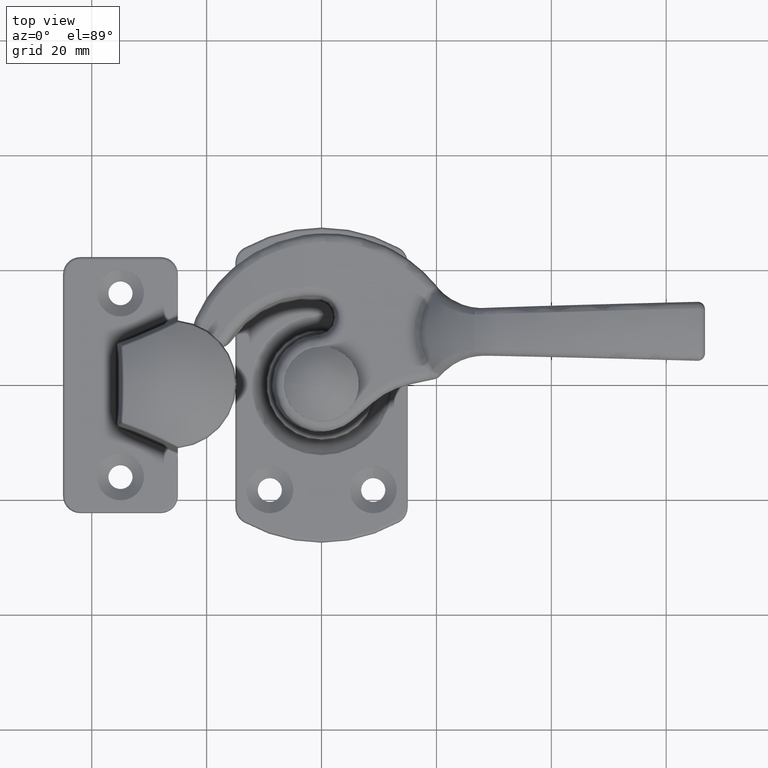
[diagram: clean part render]
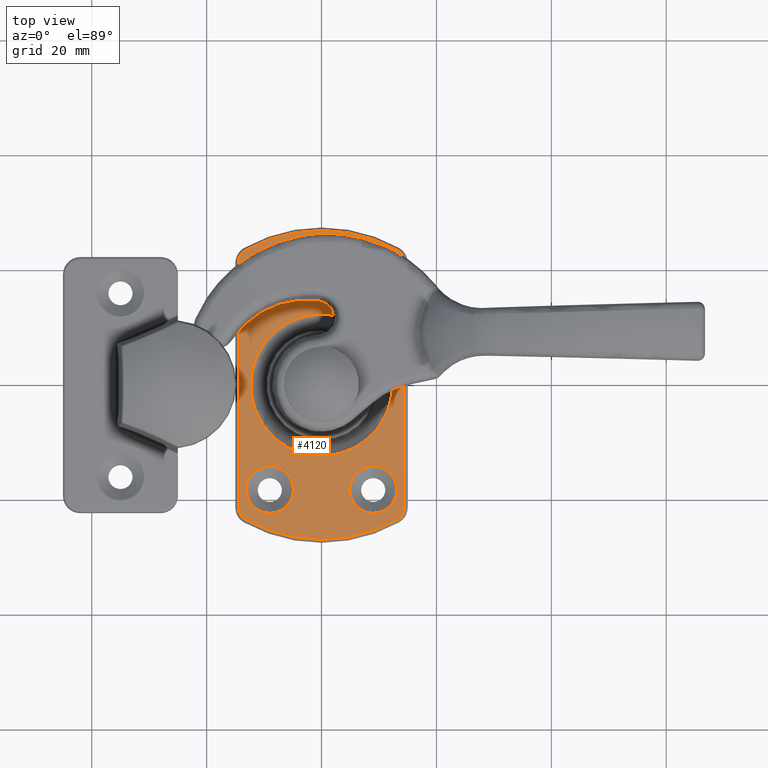
[diagram: same view with one face highlighted and labeled with its STEP entity id]
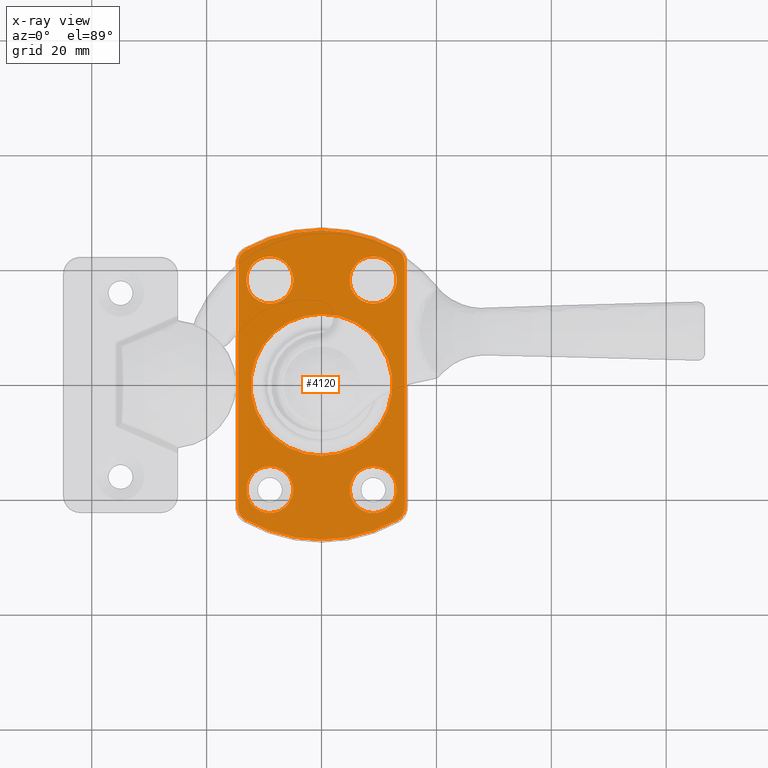
[diagram: x-ray of the same camera — body ghosted, the highlighted face saturated]
A machine part, top view. The second image highlights one B-rep face of the part: STEP entity #4120.
The next image is the same camera in x-ray: the body ghosted, the highlighted face saturated — about 0% of this face is hidden behind the body in this view.
In plain terms, the highlighted planar face has unit normal (-0, 0, -1).
Its self-contained STEP definition (entity closure, byte-faithful):
#453=PLANE('',#4456);
#541=LINE('',#6284,#713);
#542=LINE('',#6287,#714);
#713=VECTOR('',#5109,42.4904693769226);
#714=VECTOR('',#5112,42.4904697516707);
#946=FACE_BOUND('',#1304,.T.);
#947=FACE_BOUND('',#1305,.T.);
#948=FACE_BOUND('',#1306,.T.);
#949=FACE_BOUND('',#1307,.T.);
#950=FACE_BOUND('',#1308,.T.);
#1027=FACE_OUTER_BOUND('',#1303,.T.);
#1303=EDGE_LOOP('',(#3002,#3003,#3004,#3005,#3006,#3007,#3008,#3009,#3010));
#1304=EDGE_LOOP('',(#3011));
#1305=EDGE_LOOP('',(#3012));
#1306=EDGE_LOOP('',(#3013));
#1307=EDGE_LOOP('',(#3014));
#1308=EDGE_LOOP('',(#3015));
#1627=CIRCLE('',#4410,26.9000000321678);
#1630=CIRCLE('',#4414,2.50000048555164);
#1648=CIRCLE('',#4455,26.8999999952219);
#1649=CIRCLE('',#4457,2.50000860994918);
#1650=CIRCLE('',#4458,2.49999040405724);
#1651=CIRCLE('',#4459,2.49999870666066);
#1652=CIRCLE('',#4460,26.8999997211171);
#1653=CIRCLE('',#4461,4.1);
#1654=CIRCLE('',#4462,4.1);
#1655=CIRCLE('',#4463,4.1);
#1656=CIRCLE('',#4464,4.1);
#1657=CIRCLE('',#4465,12.3614974103484);
#1890=VERTEX_POINT('',#6169);
#1891=VERTEX_POINT('',#6171);
#1892=VERTEX_POINT('',#6175);
#1920=VERTEX_POINT('',#6276);
#1921=VERTEX_POINT('',#6280);
#1922=VERTEX_POINT('',#6281);
#1923=VERTEX_POINT('',#6283);
#1924=VERTEX_POINT('',#6286);
#1925=VERTEX_POINT('',#6288);
#1926=VERTEX_POINT('',#6291);
#1927=VERTEX_POINT('',#6293);
#1928=VERTEX_POINT('',#6295);
#1929=VERTEX_POINT('',#6297);
#1930=VERTEX_POINT('',#6299);
#2292=EDGE_CURVE('',#1890,#1891,#1627,.T.);
#2295=EDGE_CURVE('',#1892,#1890,#1630,.T.);
#2345=EDGE_CURVE('',#1891,#1920,#1648,.T.);
#2346=EDGE_CURVE('',#1921,#1922,#1649,.T.);
#2347=EDGE_CURVE('',#1923,#1921,#541,.T.);
#2348=EDGE_CURVE('',#1920,#1923,#1650,.T.);
#2349=EDGE_CURVE('',#1924,#1892,#542,.T.);
#2350=EDGE_CURVE('',#1925,#1924,#1651,.T.);
#2351=EDGE_CURVE('',#1922,#1925,#1652,.T.);
#2352=EDGE_CURVE('',#1926,#1926,#1653,.T.);
#2353=EDGE_CURVE('',#1927,#1927,#1654,.T.);
#2354=EDGE_CURVE('',#1928,#1928,#1655,.T.);
#2355=EDGE_CURVE('',#1929,#1929,#1656,.T.);
#2356=EDGE_CURVE('',#1930,#1930,#1657,.T.);
#3002=ORIENTED_EDGE('',*,*,#2346,.F.);
#3003=ORIENTED_EDGE('',*,*,#2347,.F.);
#3004=ORIENTED_EDGE('',*,*,#2348,.F.);
#3005=ORIENTED_EDGE('',*,*,#2345,.F.);
#3006=ORIENTED_EDGE('',*,*,#2292,.F.);
#3007=ORIENTED_EDGE('',*,*,#2295,.F.);
#3008=ORIENTED_EDGE('',*,*,#2349,.F.);
#3009=ORIENTED_EDGE('',*,*,#2350,.F.);
#3010=ORIENTED_EDGE('',*,*,#2351,.F.);
#3011=ORIENTED_EDGE('',*,*,#2352,.F.);
#3012=ORIENTED_EDGE('',*,*,#2353,.F.);
#3013=ORIENTED_EDGE('',*,*,#2354,.F.);
#3014=ORIENTED_EDGE('',*,*,#2355,.F.);
#3015=ORIENTED_EDGE('',*,*,#2356,.F.);
#4120=ADVANCED_FACE('',(#1027,#946,#947,#948,#949,#950),#453,.F.);
#4410=AXIS2_PLACEMENT_3D('',#6172,#4981,#4982);
#4414=AXIS2_PLACEMENT_3D('',#6177,#4989,#4990);
#4455=AXIS2_PLACEMENT_3D('',#6278,#5103,#5104);
#4456=AXIS2_PLACEMENT_3D('',#6279,#5105,#5106);
#4457=AXIS2_PLACEMENT_3D('',#6282,#5107,#5108);
#4458=AXIS2_PLACEMENT_3D('',#6285,#5110,#5111);
#4459=AXIS2_PLACEMENT_3D('',#6289,#5113,#5114);
#4460=AXIS2_PLACEMENT_3D('',#6290,#5115,#5116);
#4461=AXIS2_PLACEMENT_3D('',#6292,#5117,#5118);
#4462=AXIS2_PLACEMENT_3D('',#6294,#5119,#5120);
#4463=AXIS2_PLACEMENT_3D('',#6296,#5121,#5122);
#4464=AXIS2_PLACEMENT_3D('',#6298,#5123,#5124);
#4465=AXIS2_PLACEMENT_3D('',#6300,#5125,#5126);
#4981=DIRECTION('center_axis',(-3.25625111579143E-10,8.02770081404205E-11,
1.));
#4982=DIRECTION('ref_axis',(1.,-2.75729107615952E-12,3.25625111579364E-10));
#4989=DIRECTION('center_axis',(3.94034298969053E-10,-7.67927965256405E-10,
1.));
#4990=DIRECTION('ref_axis',(0.870706270634523,-0.491803406126595,-7.20757723930399E-10));
#5103=DIRECTION('center_axis',(3.49866692854347E-10,8.88704067232848E-11,
1.));
#5104=DIRECTION('ref_axis',(0.870706350811524,0.491803264178349,-3.48337907521074E-10));
#5105=DIRECTION('center_axis',(0.,0.,1.));
#5106=DIRECTION('ref_axis',(1.,0.,0.));
#5107=DIRECTION('center_axis',(-9.70072170588652E-11,3.27700114609083E-12,
1.));
#5108=DIRECTION('ref_axis',(-0.870705188018603,0.491805322823462,-8.60763337749467E-11));
#5109=DIRECTION('',(-1.,0.,0.));
#5110=DIRECTION('center_axis',(-5.77631768135384E-10,-9.59161217182573E-10,
1.));
#5111=DIRECTION('ref_axis',(-1.03775837417261E-6,0.999999999999462,9.59160617739852E-10));
#5112=DIRECTION('',(1.,0.,0.));
#5113=DIRECTION('center_axis',(1.32921557880306E-10,1.43929217970509E-10,
1.));
#5114=DIRECTION('ref_axis',(1.39805547967148E-7,-0.99999999999999,1.43929199387336E-10));
#5115=DIRECTION('center_axis',(1.34306117608685E-10,8.28504063235204E-12,
1.));
#5116=DIRECTION('ref_axis',(-0.870706340842742,-0.491803281827443,1.21015798388918E-10));
#5117=DIRECTION('center_axis',(0.,0.,-1.));
#5118=DIRECTION('ref_axis',(-1.,0.,0.));
#5119=DIRECTION('center_axis',(0.,0.,-1.));
#5120=DIRECTION('ref_axis',(-1.,0.,0.));
#5121=DIRECTION('center_axis',(0.,0.,-1.));
#5122=DIRECTION('ref_axis',(-1.,0.,0.));
#5123=DIRECTION('center_axis',(0.,0.,-1.));
#5124=DIRECTION('ref_axis',(-1.,0.,0.));
#5125=DIRECTION('center_axis',(6.14231028213911E-13,-5.95567889340945E-12,
-1.));
#5126=DIRECTION('ref_axis',(-1.,-1.02173473914742E-10,-6.14231027605399E-13));
#6169=CARTESIAN_POINT('',(23.4220005758743,-13.2295082683548,-4.50000000013405));
#6171=CARTESIAN_POINT('',(26.9000000001544,8.70431791675274E-9,-4.50000000006355));
#6172=CARTESIAN_POINT('Origin',(-3.20133475284479E-8,8.77848904679013E-9,
-4.50000000882287));
#6175=CARTESIAN_POINT('',(21.2452345856707,-14.499999999794,-4.50000000002326));
#6177=CARTESIAN_POINT('Origin',(21.2452344765151,-11.9999995142424,-4.4999999981267));
#6276=CARTESIAN_POINT('',(23.4220008376022,13.2295078047753,-4.50000000002243));
#6278=CARTESIAN_POINT('Origin',(4.93252994004933E-9,7.27556107884407E-10,
-4.49999999065214));
#6279=CARTESIAN_POINT('Origin',(0.,-14.5,-4.5));
#6280=CARTESIAN_POINT('',(-21.2452316109226,14.5000000001536,-4.50000000003535));
#6281=CARTESIAN_POINT('',(-23.4219998833539,13.2295094954808,-4.50000000027281));
#6282=CARTESIAN_POINT('Origin',(-21.2452297350325,11.9999913902051,-4.50000000002716));
#6283=CARTESIAN_POINT('',(21.245237766,14.5000000001266,-4.50000000011092));
#6284=CARTESIAN_POINT('',(0.,14.5000000003043,-4.5));
#6285=CARTESIAN_POINT('Origin',(21.245240360386,12.0000095960707,-4.50000000284159));
#6286=CARTESIAN_POINT('',(-21.245235166,-14.4999999997041,-4.50000000012961));
#6287=CARTESIAN_POINT('',(0.,-14.4999999992215,-4.5));
#6288=CARTESIAN_POINT('',(-23.4220006467529,-13.229508144072,-4.50000000002314));
#6289=CARTESIAN_POINT('Origin',(-21.2452355155137,-12.0000012930434,-4.50000000048944));
#6290=CARTESIAN_POINT('Origin',(-3.20908233319983E-7,-6.93467505641365E-11,
-4.50000000327846));
#6291=CARTESIAN_POINT('',(-14.15,-8.99999999999998,-4.5));
#6292=CARTESIAN_POINT('Origin',(-18.25,-9.,-4.5));
#6293=CARTESIAN_POINT('',(22.35,-8.99999999999998,-4.5));
#6294=CARTESIAN_POINT('Origin',(18.25,-9.,-4.5));
#6295=CARTESIAN_POINT('',(22.35,9.,-4.5));
#6296=CARTESIAN_POINT('Origin',(18.25,9.,-4.5));
#6297=CARTESIAN_POINT('',(-14.15,9.,-4.5));
#6298=CARTESIAN_POINT('Origin',(-18.25,9.,-4.5));
#6299=CARTESIAN_POINT('',(-12.3614974103614,1.04256724837347E-11,-4.50000000018521));
#6300=CARTESIAN_POINT('Origin',(-1.30473409853948E-11,1.27344280568632E-9,
-4.50000000031121));